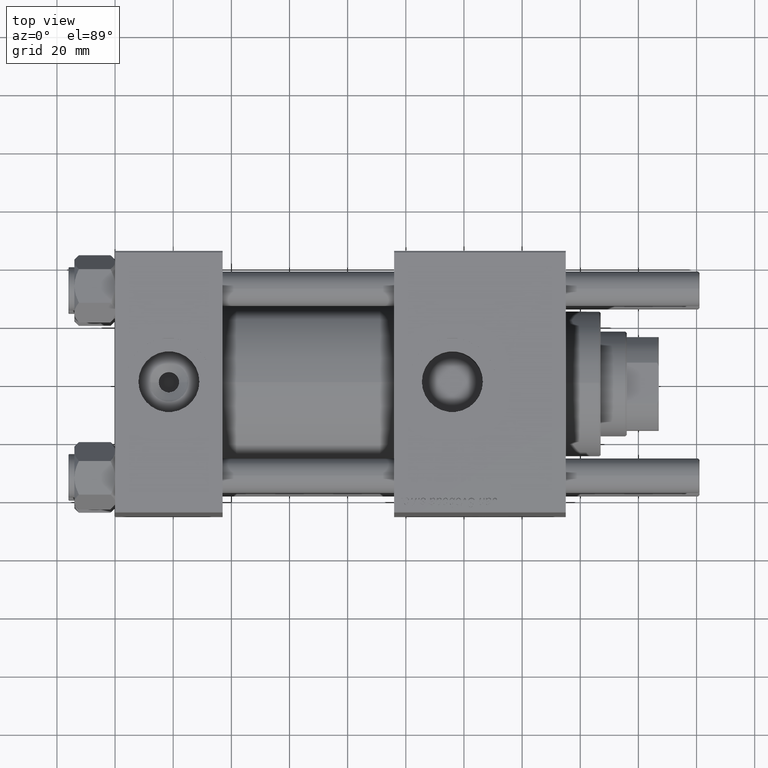
[diagram: clean part render]
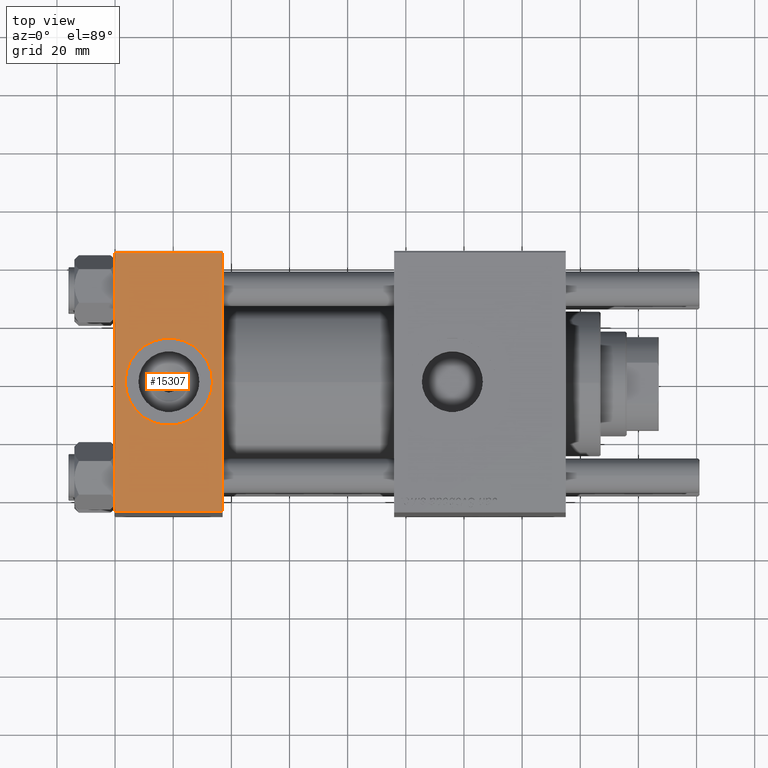
[diagram: same view with one face highlighted and labeled with its STEP entity id]
A machine part, top view. The second image highlights one B-rep face of the part: STEP entity #15307.
In plain terms, the highlighted planar face has unit normal (0, 0, -1).
Its self-contained STEP definition (entity closure, byte-faithful):
#306 = CIRCLE ( 'NONE', #9497, 15.00000000000000355 ) ;
#2881 = AXIS2_PLACEMENT_3D ( 'NONE', #32651, #42126, #29165 ) ;
#4473 = LINE ( 'NONE', #54154, #18144 ) ;
#5303 = ORIENTED_EDGE ( 'NONE', *, *, #30523, .F. ) ;
#5468 = VECTOR ( 'NONE', #44885, 1000.000000000000000 ) ;
#5634 = ORIENTED_EDGE ( 'NONE', *, *, #22169, .T. ) ;
#7765 = ORIENTED_EDGE ( 'NONE', *, *, #9661, .T. ) ;
#8502 = VECTOR ( 'NONE', #12288, 1000.000000000000000 ) ;
#9497 = AXIS2_PLACEMENT_3D ( 'NONE', #21003, #56100, #25606 ) ;
#9661 = EDGE_CURVE ( 'NONE', #41529, #12784, #4473, .T. ) ;
#11969 = ORIENTED_EDGE ( 'NONE', *, *, #25983, .F. ) ;
#12157 = CARTESIAN_POINT ( 'NONE',  ( 37.00000000000000000, 44.99999999999998579, 45.00000000000001421 ) ) ;
#12288 = DIRECTION ( 'NONE',  ( 0.000000000000000000, -1.000000000000000000, -1.541976423090495387E-16 ) ) ;
#12784 = VERTEX_POINT ( 'NONE', #13876 ) ;
#13876 = CARTESIAN_POINT ( 'NONE',  ( 0.000000000000000000, -44.49999999999995737, 45.00000000000000000 ) ) ;
#15307 = ADVANCED_FACE ( 'NONE', ( #20500, #28853 ), #38630, .F. ) ;
#18144 = VECTOR ( 'NONE', #23370, 1000.000000000000000 ) ;
#18518 = CARTESIAN_POINT ( 'NONE',  ( 37.00000000000000000, -44.49999999999995737, 45.00000000000000000 ) ) ;
#20500 = FACE_BOUND ( 'NONE', #44617, .T. ) ;
#20784 = DIRECTION ( 'NONE',  ( 0.000000000000000000, 1.000000000000000000, 1.541976423090495633E-16 ) ) ;
#21003 = CARTESIAN_POINT ( 'NONE',  ( 18.50000000000000000, -8.673617379884038628E-15, 45.00000000000000711 ) ) ;
#22169 = EDGE_CURVE ( 'NONE', #12784, #37982, #49762, .T. ) ;
#23370 = DIRECTION ( 'NONE',  ( 0.000000000000000000, -1.000000000000000000, -1.541976423090495387E-16 ) ) ;
#24037 = VERTEX_POINT ( 'NONE', #26131 ) ;
#24377 = VECTOR ( 'NONE', #41804, 1000.000000000000000 ) ;
#25606 = DIRECTION ( 'NONE',  ( 1.000000000000000000, 0.000000000000000000, 0.000000000000000000 ) ) ;
#25983 = EDGE_CURVE ( 'NONE', #24037, #46055, #56125, .T. ) ;
#26131 = CARTESIAN_POINT ( 'NONE',  ( 3.499999999999997780, -6.836647181163008250E-15, 45.00000000000000711 ) ) ;
#27051 = CARTESIAN_POINT ( 'NONE',  ( 37.00000000000000000, -44.49999999999998579, 45.00000000000000000 ) ) ;
#28853 = FACE_OUTER_BOUND ( 'NONE', #45386, .T. ) ;
#29165 = DIRECTION ( 'NONE',  ( 1.000000000000000000, 0.000000000000000000, 0.000000000000000000 ) ) ;
#30392 = CARTESIAN_POINT ( 'NONE',  ( 37.00000000000000000, 44.99999999999998579, 45.00000000000001421 ) ) ;
#30523 = EDGE_CURVE ( 'NONE', #41216, #37982, #43909, .T. ) ;
#32651 = CARTESIAN_POINT ( 'NONE',  ( 18.50000000000000000, -8.673617379884038628E-15, 45.00000000000000711 ) ) ;
#32899 = DIRECTION ( 'NONE',  ( 0.000000000000000000, 1.541976423090495633E-16, -1.000000000000000000 ) ) ;
#32918 = EDGE_CURVE ( 'NONE', #46055, #24037, #306, .T. ) ;
#37208 = CARTESIAN_POINT ( 'NONE',  ( 0.000000000000000000, 44.49999999999998579, 45.00000000000001421 ) ) ;
#37982 = VERTEX_POINT ( 'NONE', #18518 ) ;
#38534 = AXIS2_PLACEMENT_3D ( 'NONE', #12157, #32899, #20784 ) ;
#38630 = PLANE ( 'NONE',  #38534 ) ;
#40950 = CARTESIAN_POINT ( 'NONE',  ( 0.000000000000000000, 44.49999999999998579, 45.00000000000001421 ) ) ;
#41216 = VERTEX_POINT ( 'NONE', #45319 ) ;
#41529 = VERTEX_POINT ( 'NONE', #40950 ) ;
#41739 = EDGE_CURVE ( 'NONE', #41216, #41529, #55580, .T. ) ;
#41804 = DIRECTION ( 'NONE',  ( -1.000000000000000000, 0.000000000000000000, 0.000000000000000000 ) ) ;
#42126 = DIRECTION ( 'NONE',  ( 0.000000000000000000, 0.000000000000000000, 1.000000000000000000 ) ) ;
#43909 = LINE ( 'NONE', #30392, #8502 ) ;
#44028 = ORIENTED_EDGE ( 'NONE', *, *, #32918, .F. ) ;
#44617 = EDGE_LOOP ( 'NONE', ( #44028, #11969 ) ) ;
#44885 = DIRECTION ( 'NONE',  ( 1.000000000000000000, 0.000000000000000000, 0.000000000000000000 ) ) ;
#45319 = CARTESIAN_POINT ( 'NONE',  ( 37.00000000000000000, 44.49999999999998579, 45.00000000000001421 ) ) ;
#45386 = EDGE_LOOP ( 'NONE', ( #7765, #5634, #5303, #54234 ) ) ;
#46055 = VERTEX_POINT ( 'NONE', #46975 ) ;
#46975 = CARTESIAN_POINT ( 'NONE',  ( 33.50000000000000000, -8.673617379884038628E-15, 45.00000000000000711 ) ) ;
#49762 = LINE ( 'NONE', #27051, #5468 ) ;
#54154 = CARTESIAN_POINT ( 'NONE',  ( 0.000000000000000000, 44.99999999999998579, 45.00000000000001421 ) ) ;
#54234 = ORIENTED_EDGE ( 'NONE', *, *, #41739, .T. ) ;
#55580 = LINE ( 'NONE', #37208, #24377 ) ;
#56100 = DIRECTION ( 'NONE',  ( 0.000000000000000000, 0.000000000000000000, 1.000000000000000000 ) ) ;
#56125 = CIRCLE ( 'NONE', #2881, 15.00000000000000355 ) ;